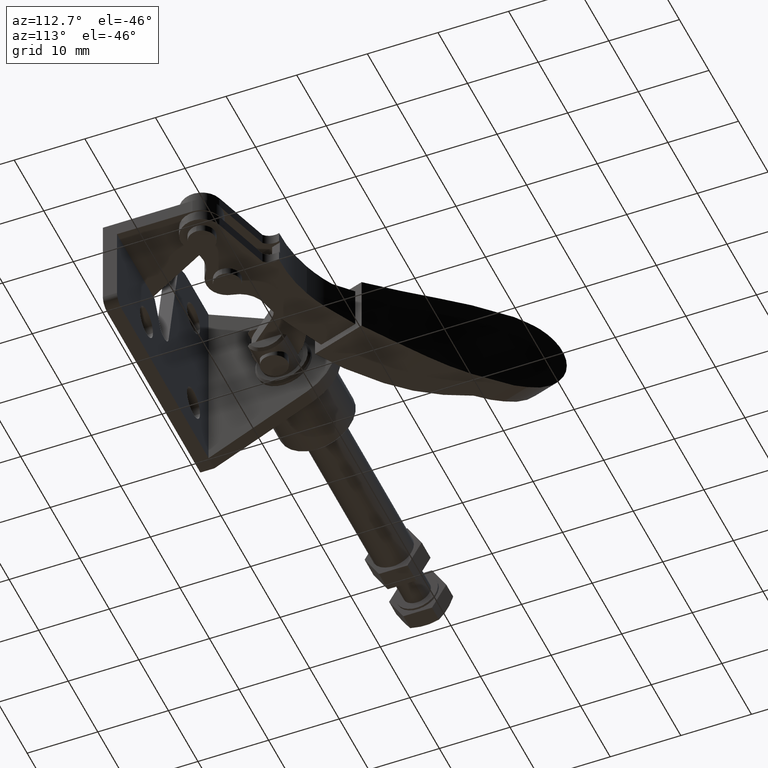
[diagram: clean part render]
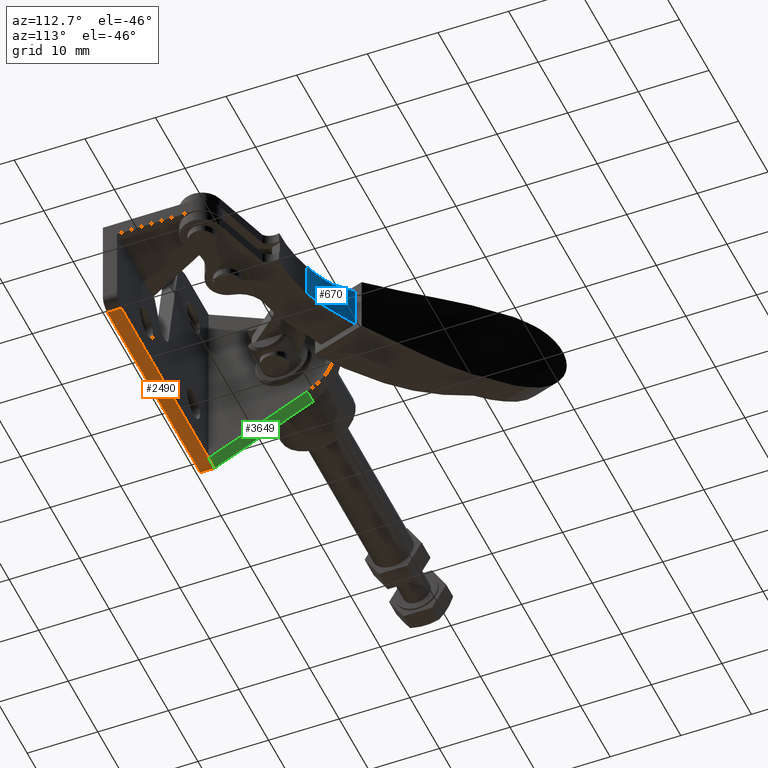
[diagram: same view with three faces highlighted in distinct colors, each labeled with its STEP entity id]
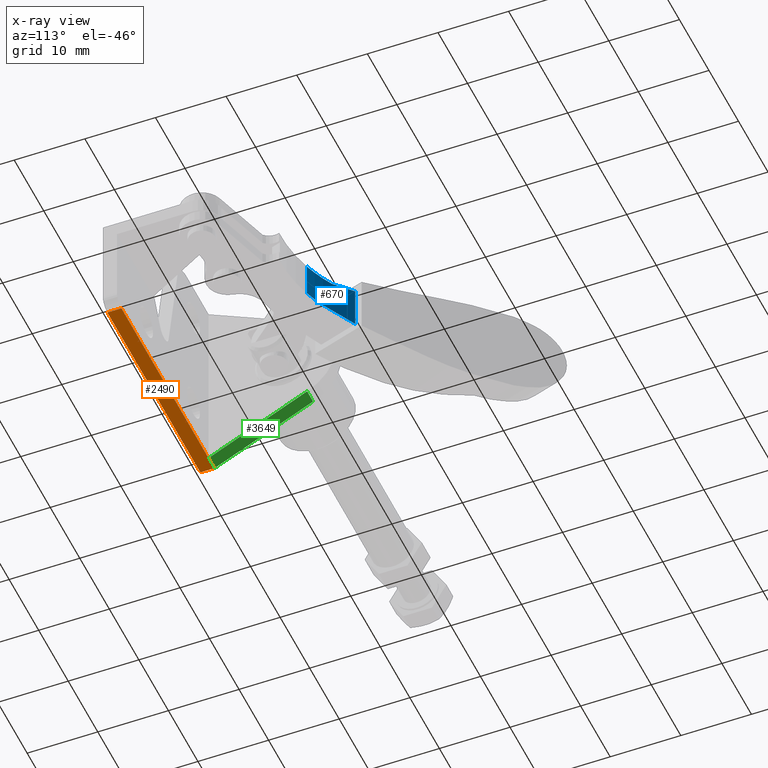
[diagram: x-ray of the same camera — body ghosted, the three highlighted faces saturated]
A machine part, auxiliary view with three faces highlighted in distinct colors.
The next image is the same camera in x-ray (body ghosted, the three faces saturated) — at least one of them is partly hidden behind the body in this view.
Their STEP definitions:

[orange] entity #2490 — the highlighted planar face has unit normal (0, 0, -1).
#72 = EDGE_CURVE ( 'NONE', #1564, #5309, #3252, .T. ) ;
#362 = DIRECTION ( 'NONE',  ( 1.000000000000000000, -2.406229337645246000E-015, -0.0000000000000000000 ) ) ;
#387 = ORIENTED_EDGE ( 'NONE', *, *, #2037, .T. ) ;
#536 = VECTOR ( 'NONE', #3066, 1000.000000000000000 ) ;
#686 = CARTESIAN_POINT ( 'NONE',  ( 0.0000000000000000000, 1.999999999999927200, 0.0000000000000000000 ) ) ;
#832 = LINE ( 'NONE', #1657, #536 ) ;
#915 = EDGE_CURVE ( 'NONE', #3408, #5919, #2966, .T. ) ;
#997 = ORIENTED_EDGE ( 'NONE', *, *, #2513, .T. ) ;
#1029 = ORIENTED_EDGE ( 'NONE', *, *, #72, .F. ) ;
#1132 = LINE ( 'NONE', #6031, #4814 ) ;
#1174 = DIRECTION ( 'NONE',  ( 0.0000000000000000000, 0.0000000000000000000, -1.000000000000000000 ) ) ;
#1269 = DIRECTION ( 'NONE',  ( 2.406229337645246000E-015, 1.000000000000000000, 0.0000000000000000000 ) ) ;
#1564 = VERTEX_POINT ( 'NONE', #2980 ) ;
#1657 = CARTESIAN_POINT ( 'NONE',  ( -33.00000000000003600, 20.00000000000001800, 0.0000000000000000000 ) ) ;
#1913 = EDGE_LOOP ( 'NONE', ( #1029, #2083, #997, #5316, #387 ) ) ;
#2007 = CARTESIAN_POINT ( 'NONE',  ( -1.499999999999968900, 1.999999999999930700, -3.469446951953614200E-015 ) ) ;
#2037 = EDGE_CURVE ( 'NONE', #5919, #5309, #3981, .T. ) ;
#2083 = ORIENTED_EDGE ( 'NONE', *, *, #3136, .T. ) ;
#2490 = ADVANCED_FACE ( 'NONE', ( #4357 ), #5961, .T. ) ;
#2513 = EDGE_CURVE ( 'NONE', #5278, #3408, #832, .T. ) ;
#2966 = LINE ( 'NONE', #5795, #4549 ) ;
#2980 = CARTESIAN_POINT ( 'NONE',  ( -1.499999999999973800, 0.0000000000000000000, -3.469446951953614200E-015 ) ) ;
#3066 = DIRECTION ( 'NONE',  ( 0.0000000000000000000, 1.000000000000000000, 0.0000000000000000000 ) ) ;
#3136 = EDGE_CURVE ( 'NONE', #1564, #5278, #1132, .T. ) ;
#3140 = DIRECTION ( 'NONE',  ( -1.000000000000000000, 0.0000000000000000000, 0.0000000000000000000 ) ) ;
#3252 = LINE ( 'NONE', #6054, #4389 ) ;
#3408 = VERTEX_POINT ( 'NONE', #5294 ) ;
#3981 = LINE ( 'NONE', #6107, #4834 ) ;
#4357 = FACE_OUTER_BOUND ( 'NONE', #1913, .T. ) ;
#4389 = VECTOR ( 'NONE', #1269, 1000.000000000000000 ) ;
#4420 = DIRECTION ( 'NONE',  ( 1.000000000000000000, 0.0000000000000000000, 0.0000000000000000000 ) ) ;
#4530 = DIRECTION ( 'NONE',  ( -1.000000000000000000, 0.0000000000000000000, 0.0000000000000000000 ) ) ;
#4549 = VECTOR ( 'NONE', #4420, 1000.000000000000000 ) ;
#4743 = CARTESIAN_POINT ( 'NONE',  ( -31.00000000000003600, 2.000000000000001800, 0.0000000000000000000 ) ) ;
#4814 = VECTOR ( 'NONE', #3140, 1000.000000000000000 ) ;
#4834 = VECTOR ( 'NONE', #362, 1000.000000000000000 ) ;
#4923 = AXIS2_PLACEMENT_3D ( 'NONE', #686, #1174, #4530 ) ;
#5278 = VERTEX_POINT ( 'NONE', #5797 ) ;
#5294 = CARTESIAN_POINT ( 'NONE',  ( -33.00000000000003600, 2.000000000000001800, 0.0000000000000000000 ) ) ;
#5309 = VERTEX_POINT ( 'NONE', #2007 ) ;
#5316 = ORIENTED_EDGE ( 'NONE', *, *, #915, .T. ) ;
#5795 = CARTESIAN_POINT ( 'NONE',  ( 0.0000000000000000000, 2.000000000000003100, 0.0000000000000000000 ) ) ;
#5797 = CARTESIAN_POINT ( 'NONE',  ( -33.00000000000003600, 0.0000000000000000000, 0.0000000000000000000 ) ) ;
#5919 = VERTEX_POINT ( 'NONE', #4743 ) ;
#5961 = PLANE ( 'NONE',  #4923 ) ;
#6031 = CARTESIAN_POINT ( 'NONE',  ( -33.00000000000003600, 0.0000000000000000000, 0.0000000000000000000 ) ) ;
#6054 = CARTESIAN_POINT ( 'NONE',  ( -1.500000000000033800, -25.00000000000007100, -3.469446951953614200E-015 ) ) ;
#6107 = CARTESIAN_POINT ( 'NONE',  ( -31.00000000000003600, 2.000000000000001800, 0.0000000000000000000 ) ) ;

[blue] entity #670 — the highlighted cylindrical surface (partial cylindrical patch) has radius 21.4575 mm, axis along (-0, 0, -1).
#67 = CARTESIAN_POINT ( 'NONE',  ( -11.66907649135782100, 41.75920267511227000, 10.99999999999998600 ) ) ;
#93 = DIRECTION ( 'NONE',  ( -1.154117047597372500E-016, 3.486725593084264400E-017, -1.000000000000000000 ) ) ;
#177 = ORIENTED_EDGE ( 'NONE', *, *, #1355, .F. ) ;
#181 = CARTESIAN_POINT ( 'NONE',  ( -22.31232152285723200, 23.12732977276770200, 10.99999999999998800 ) ) ;
#209 = CARTESIAN_POINT ( 'NONE',  ( -22.31232152285723200, 23.12732977276770200, 15.99999999999998600 ) ) ;
#248 = DIRECTION ( 'NONE',  ( -1.154117047597372500E-016, 3.486725593084264400E-017, -1.000000000000000000 ) ) ;
#281 = AXIS2_PLACEMENT_3D ( 'NONE', #409, #1697, #2656 ) ;
#324 = EDGE_LOOP ( 'NONE', ( #4194, #3615, #5486, #1557, #393, #177 ) ) ;
#393 = ORIENTED_EDGE ( 'NONE', *, *, #2518, .F. ) ;
#409 = CARTESIAN_POINT ( 'NONE',  ( -11.66907649135782100, 41.75920267511227000, 15.99999999999998600 ) ) ;
#523 = CARTESIAN_POINT ( 'NONE',  ( -22.31232152285723200, 23.12732977276770200, 10.99999999999998800 ) ) ;
#548 = DIRECTION ( 'NONE',  ( 0.9535238414049561600, -0.3013175797598541800, -2.425335903166299000E-016 ) ) ;
#645 = CARTESIAN_POINT ( 'NONE',  ( -25.27454085481096900, 25.16653284459780000, 10.49296053606549600 ) ) ;
#670 = ADVANCED_FACE ( 'NONE', ( #6195 ), #4614, .F. ) ;
#858 = VERTEX_POINT ( 'NONE', #523 ) ;
#886 = CARTESIAN_POINT ( 'NONE',  ( -18.13460580610003000, 21.29894159833546800, 10.99999999999998600 ) ) ;
#1072 = EDGE_CURVE ( 'NONE', #4704, #4812, #1091, .T. ) ;
#1091 = CIRCLE ( 'NONE', #281, 21.45752438306102800 ) ;
#1355 = EDGE_CURVE ( 'NONE', #4812, #3446, #4848, .T. ) ;
#1510 = CARTESIAN_POINT ( 'NONE',  ( -22.31232152285723200, 23.12732977276770200, 15.99999999999998600 ) ) ;
#1557 = ORIENTED_EDGE ( 'NONE', *, *, #4775, .F. ) ;
#1697 = DIRECTION ( 'NONE',  ( -1.358329210339484500E-017, 2.689045465555421100E-018, -1.000000000000000000 ) ) ;
#1809 = VECTOR ( 'NONE', #5982, 1000.000000000000000 ) ;
#1925 = CARTESIAN_POINT ( 'NONE',  ( -23.34782486201428100, 23.71884925271205400, 16.21391181074005800 ) ) ;
#1963 = LINE ( 'NONE', #3086, #1809 ) ;
#1984 = CARTESIAN_POINT ( 'NONE',  ( -25.27454085481096200, 25.16653284459779300, 16.62794156825389900 ) ) ;
#2518 = EDGE_CURVE ( 'NONE', #3446, #5481, #1963, .T. ) ;
#2656 = DIRECTION ( 'NONE',  ( -0.9535238414049517200, 0.3013175797598684500, 0.0000000000000000000 ) ) ;
#3049 = CARTESIAN_POINT ( 'NONE',  ( -23.35168873025816400, 23.72105644340645000, 10.84104391292455500 ) ) ;
#3055 = AXIS2_PLACEMENT_3D ( 'NONE', #67, #3405, #548 ) ;
#3078 = AXIS2_PLACEMENT_3D ( 'NONE', #5188, #248, #4256 ) ;
#3086 = CARTESIAN_POINT ( 'NONE',  ( -25.27454085481096200, 25.16653284459779300, 19.02606769398400700 ) ) ;
#3269 = LINE ( 'NONE', #4886, #3416 ) ;
#3361 = CARTESIAN_POINT ( 'NONE',  ( -25.27454085481096200, 25.16653284459779300, 16.62794156825389900 ) ) ;
#3405 = DIRECTION ( 'NONE',  ( 2.172401174160796500E-016, -6.704546639612986600E-017, 1.000000000000000000 ) ) ;
#3416 = VECTOR ( 'NONE', #93, 1000.000000000000000 ) ;
#3446 = VERTEX_POINT ( 'NONE', #1984 ) ;
#3508 = EDGE_CURVE ( 'NONE', #4704, #3894, #3269, .T. ) ;
#3615 = ORIENTED_EDGE ( 'NONE', *, *, #3508, .T. ) ;
#3894 = VERTEX_POINT ( 'NONE', #886 ) ;
#4030 = EDGE_CURVE ( 'NONE', #858, #3894, #5910, .T. ) ;
#4194 = ORIENTED_EDGE ( 'NONE', *, *, #1072, .F. ) ;
#4256 = DIRECTION ( 'NONE',  ( -0.3013175797598634500, -0.9535238414049531700, 0.0000000000000000000 ) ) ;
#4292 = CARTESIAN_POINT ( 'NONE',  ( -24.33608848955732600, 24.39703159237762300, 16.42325321322174500 ) ) ;
#4484 = CARTESIAN_POINT ( 'NONE',  ( -24.33955201776039300, 24.39987157593783700, 10.67150208792243400 ) ) ;
#4614 = CYLINDRICAL_SURFACE ( 'NONE', #3078, 21.45752438306103100 ) ;
#4704 = VERTEX_POINT ( 'NONE', #5404 ) ;
#4775 = EDGE_CURVE ( 'NONE', #5481, #858, #5276, .T. ) ;
#4812 = VERTEX_POINT ( 'NONE', #209 ) ;
#4848 = B_SPLINE_CURVE_WITH_KNOTS ( 'NONE', 3,
 ( #1510, #1925, #4292, #3361 ),
 .UNSPECIFIED., .F., .F.,
 ( 4, 4 ),
 ( 0.01186171064201733100, 0.01550906591280097400 ),
 .UNSPECIFIED. ) ;
#4886 = CARTESIAN_POINT ( 'NONE',  ( -18.13460580610003000, 21.29894159833546400, 19.02606769398399700 ) ) ;
#5067 = CARTESIAN_POINT ( 'NONE',  ( -25.27454085481096900, 25.16653284459780000, 10.49296053606549600 ) ) ;
#5188 = CARTESIAN_POINT ( 'NONE',  ( -11.66907649135782100, 41.75920267511227000, 19.02606769398399700 ) ) ;
#5276 = B_SPLINE_CURVE_WITH_KNOTS ( 'NONE', 3,
 ( #645, #4484, #3049, #181 ),
 .UNSPECIFIED., .F., .F.,
 ( 4, 4 ),
 ( 0.0002528632442384741500, 0.003875151326031478100 ),
 .UNSPECIFIED. ) ;
#5404 = CARTESIAN_POINT ( 'NONE',  ( -18.13460580610003000, 21.29894159833546800, 15.99999999999998600 ) ) ;
#5481 = VERTEX_POINT ( 'NONE', #5067 ) ;
#5486 = ORIENTED_EDGE ( 'NONE', *, *, #4030, .F. ) ;
#5910 = CIRCLE ( 'NONE', #3055, 21.45752438306103100 ) ;
#5982 = DIRECTION ( 'NONE',  ( -1.154117047597372500E-016, 3.486725593084264400E-017, -1.000000000000000000 ) ) ;
#6195 = FACE_OUTER_BOUND ( 'NONE', #324, .T. ) ;

[green] entity #3649 — the highlighted planar face has unit normal (0, 0.4466, -0.8947).
#312 = VECTOR ( 'NONE', #3889, 1000.000000000000200 ) ;
#487 = VECTOR ( 'NONE', #3744, 1000.000000000000000 ) ;
#612 = VERTEX_POINT ( 'NONE', #2323 ) ;
#693 = CARTESIAN_POINT ( 'NONE',  ( -6.000000000000036400, 15.96029942902132600, 6.968503415516136300 ) ) ;
#809 = ORIENTED_EDGE ( 'NONE', *, *, #1112, .F. ) ;
#915 = EDGE_CURVE ( 'NONE', #3408, #5919, #2966, .T. ) ;
#1044 = CARTESIAN_POINT ( 'NONE',  ( -31.00000000000003600, 27.19878384673474900, 12.57836998379726600 ) ) ;
#1112 = EDGE_CURVE ( 'NONE', #612, #5094, #3477, .T. ) ;
#1401 = FACE_OUTER_BOUND ( 'NONE', #2374, .T. ) ;
#1522 = DIRECTION ( 'NONE',  ( 0.0000000000000000000, 0.8947255595183166700, 0.4466163601399249000 ) ) ;
#1593 = LINE ( 'NONE', #4860, #312 ) ;
#1830 = CARTESIAN_POINT ( 'NONE',  ( -33.00000000000003600, 15.96029942902132600, 6.968503415516136300 ) ) ;
#2144 = DIRECTION ( 'NONE',  ( 0.0000000000000000000, 0.4466163601399249500, -0.8947255595183167800 ) ) ;
#2148 = LINE ( 'NONE', #1044, #4562 ) ;
#2299 = EDGE_CURVE ( 'NONE', #5094, #3408, #1593, .T. ) ;
#2323 = CARTESIAN_POINT ( 'NONE',  ( -31.00000000000003600, 15.96029942902132600, 6.968503415516136300 ) ) ;
#2374 = EDGE_LOOP ( 'NONE', ( #3137, #5226, #809, #2481 ) ) ;
#2481 = ORIENTED_EDGE ( 'NONE', *, *, #3471, .F. ) ;
#2966 = LINE ( 'NONE', #5795, #4549 ) ;
#3137 = ORIENTED_EDGE ( 'NONE', *, *, #915, .F. ) ;
#3408 = VERTEX_POINT ( 'NONE', #5294 ) ;
#3471 = EDGE_CURVE ( 'NONE', #5919, #612, #2148, .T. ) ;
#3477 = LINE ( 'NONE', #4275, #487 ) ;
#3521 = PLANE ( 'NONE',  #3933 ) ;
#3649 = ADVANCED_FACE ( 'NONE', ( #1401 ), #3521, .T. ) ;
#3744 = DIRECTION ( 'NONE',  ( -1.000000000000000000, 0.0000000000000000000, 0.0000000000000000000 ) ) ;
#3889 = DIRECTION ( 'NONE',  ( 0.0000000000000000000, -0.8947255595183166700, -0.4466163601399249000 ) ) ;
#3933 = AXIS2_PLACEMENT_3D ( 'NONE', #693, #2144, #5499 ) ;
#4275 = CARTESIAN_POINT ( 'NONE',  ( -6.000000000000036400, 15.96029942902132600, 6.968503415516136300 ) ) ;
#4420 = DIRECTION ( 'NONE',  ( 1.000000000000000000, 0.0000000000000000000, 0.0000000000000000000 ) ) ;
#4549 = VECTOR ( 'NONE', #4420, 1000.000000000000000 ) ;
#4562 = VECTOR ( 'NONE', #1522, 1000.000000000000100 ) ;
#4743 = CARTESIAN_POINT ( 'NONE',  ( -31.00000000000003600, 2.000000000000001800, 0.0000000000000000000 ) ) ;
#4860 = CARTESIAN_POINT ( 'NONE',  ( -33.00000000000003600, 15.96029942902132600, 6.968503415516136300 ) ) ;
#5094 = VERTEX_POINT ( 'NONE', #1830 ) ;
#5226 = ORIENTED_EDGE ( 'NONE', *, *, #2299, .F. ) ;
#5294 = CARTESIAN_POINT ( 'NONE',  ( -33.00000000000003600, 2.000000000000001800, 0.0000000000000000000 ) ) ;
#5499 = DIRECTION ( 'NONE',  ( 0.0000000000000000000, -0.8947255595183166700, -0.4466163601399249000 ) ) ;
#5795 = CARTESIAN_POINT ( 'NONE',  ( 0.0000000000000000000, 2.000000000000003100, 0.0000000000000000000 ) ) ;
#5919 = VERTEX_POINT ( 'NONE', #4743 ) ;